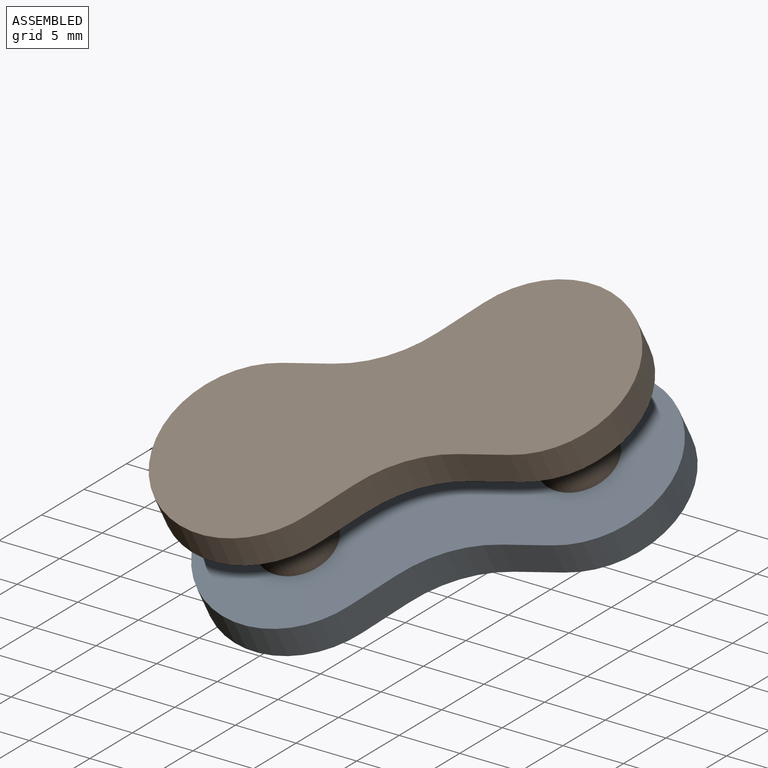
[diagram: assembled view]
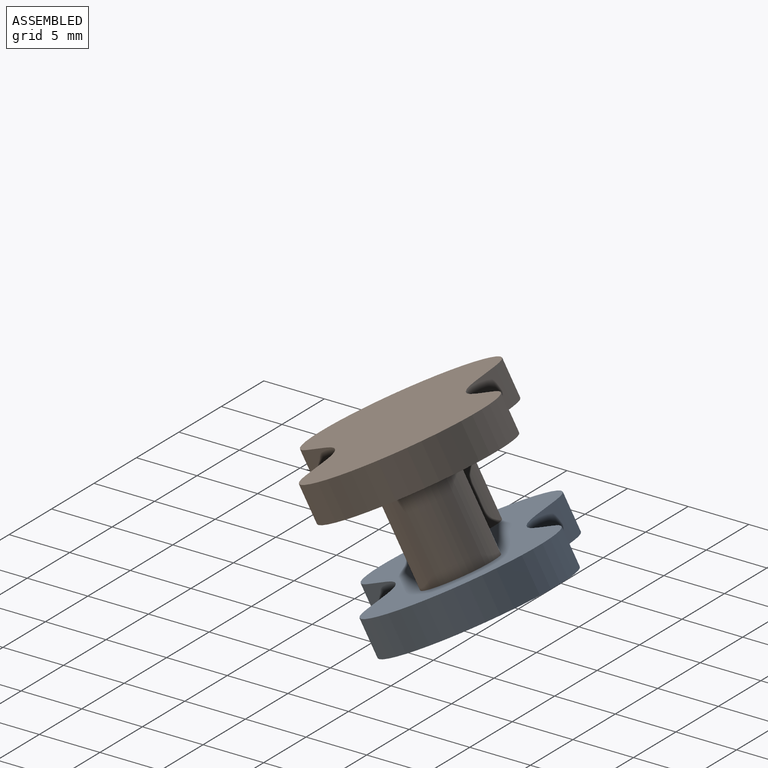
[diagram: assembled view, second angle]
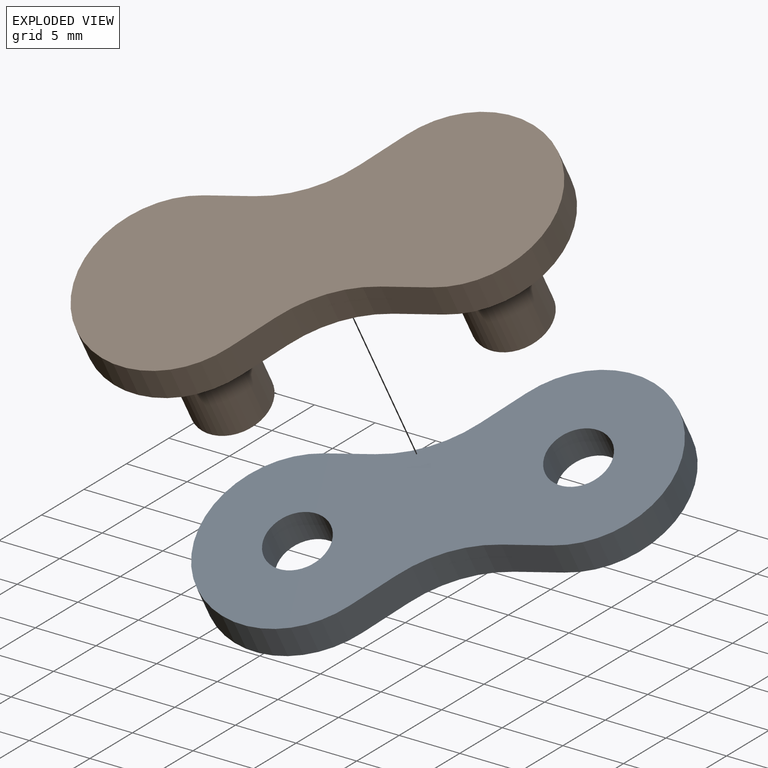
[diagram: exploded view]
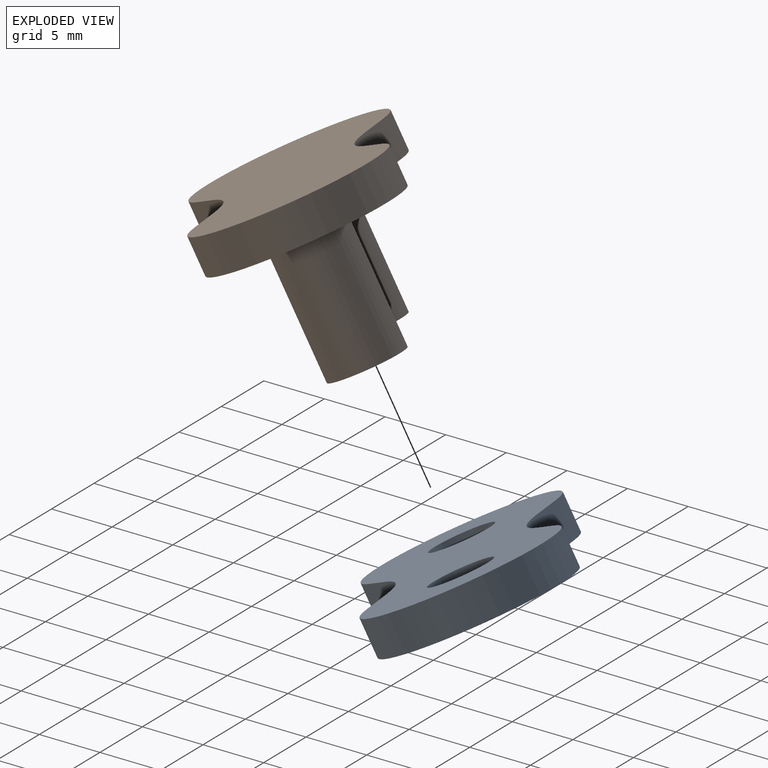
[diagram: exploded view, second angle]
ASSEMBLY  parts=2 mates=2
PART A: 12 faces, bbox 35x3x15 mm
  f0: cylinder r=10mm len=7.5mm, axis (0,1,0), area 23.1mm2, adj f1,f7,f8,f9
  f1: plane 3.44x3mm, normal (0.37,0,0.93), area 11.1mm2, adj f0,f2,f8,f9
  f2: cylinder r=7.5mm len=15mm, axis (0,1,0), area 88mm2, adj f1,f3,f8,f9
  f3: plane 3.44x3mm, normal (0.37,0,-0.93), area 11.1mm2, adj f2,f4,f8,f9
  f4: cylinder r=10mm len=7.5mm, axis (0,1,0), area 23.1mm2, adj f3,f5,f8,f9
  f5: plane 3.44x3mm, normal (-0.37,0,-0.93), area 11.1mm2, adj f4,f6,f8,f9
  f6: cylinder r=7.5mm len=15mm, axis (0,1,0), area 88mm2, adj f5,f7,f8,f9
  f7: plane 3.44x3mm, normal (-0.37,0,0.93), area 11.1mm2, adj f0,f6,f8,f9
  f8: plane 35x15mm, normal (0,-1,0), area 381.9mm2, adj f0,f1,f2,f3,f4,f5,f6,f7
  f9: plane 35x15mm, normal (0,1,0), area 381.9mm2, adj f0,f1,f2,f3,f4,f5,f6,f7
  f10: cylinder r=2.5mm len=5mm, axis (0,1,0), area 47.1mm2, adj f8,f9
  f11: cylinder r=2.5mm len=5mm, axis (0,1,0), area 47.1mm2, adj f8,f9
PART B: 14 faces, bbox 35x13x15 mm
  f0: cylinder r=10mm len=7.5mm, axis (0,1,0), area 23.1mm2, adj f1,f7,f8,f9
  f1: plane 3.44x3mm, normal (0.37,0,0.93), area 11.1mm2, adj f0,f2,f8,f9
  f2: cylinder r=7.5mm len=15mm, axis (0,1,0), area 88mm2, adj f1,f3,f8,f9
  f3: plane 3.44x3mm, normal (0.37,0,-0.93), area 11.1mm2, adj f2,f4,f8,f9
  f4: cylinder r=10mm len=7.5mm, axis (0,1,0), area 23.1mm2, adj f3,f5,f8,f9
  f5: plane 3.44x3mm, normal (-0.37,0,-0.93), area 11.1mm2, adj f4,f6,f8,f9
  f6: cylinder r=7.5mm len=15mm, axis (0,1,0), area 88mm2, adj f5,f7,f8,f9
  f7: plane 3.44x3mm, normal (-0.37,0,0.93), area 11.1mm2, adj f0,f6,f8,f9
  f8: plane 35x15mm, normal (0,-1,0), area 421.2mm2, adj f0,f1,f2,f3,f4,f5,f6,f7
  f9: plane 35x15mm, normal (0,1,0), area 364.6mm2, adj f0,f1,f2,f3,f4,f5,f6,f7
  f10: cylinder r=3mm len=10mm, axis (0,-1,0), area 188.5mm2, adj f9,f11
  f11: plane 6x6mm, normal (0,1,0), area 28.3mm2, adj f10
  f12: cylinder r=3mm len=10mm, axis (0,-1,0), area 188.5mm2, adj f9,f13
  f13: plane 6x6mm, normal (0,1,0), area 28.3mm2, adj f12
PLACE A rot(axis=(-0.82,-0.5,0.29),70.4deg) t=(10.29,-14.47,-5.82)mm
PLACE B rot(axis=(-0.82,-0.5,0.29),70.4deg) t=(10.29,-19.47,2.84)mm
MATE cylindrical B.f12 <-> A.f6  axis (0,0.5,-0.87) through (25.89,-3.63,0.44)mm
MATE cylindrical A.f10 <-> B.f10  axis (0,0.5,-0.87) through (10.29,-14.47,-5.82)mm
